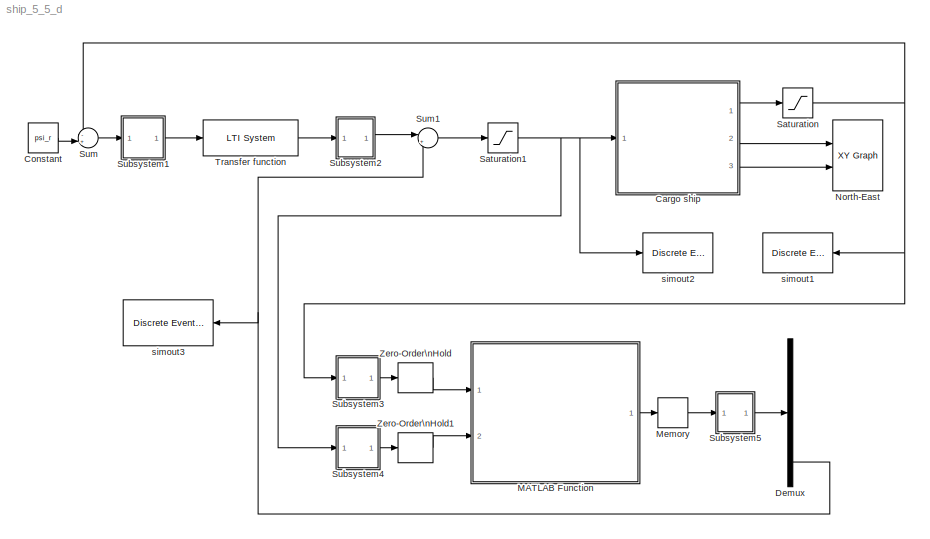
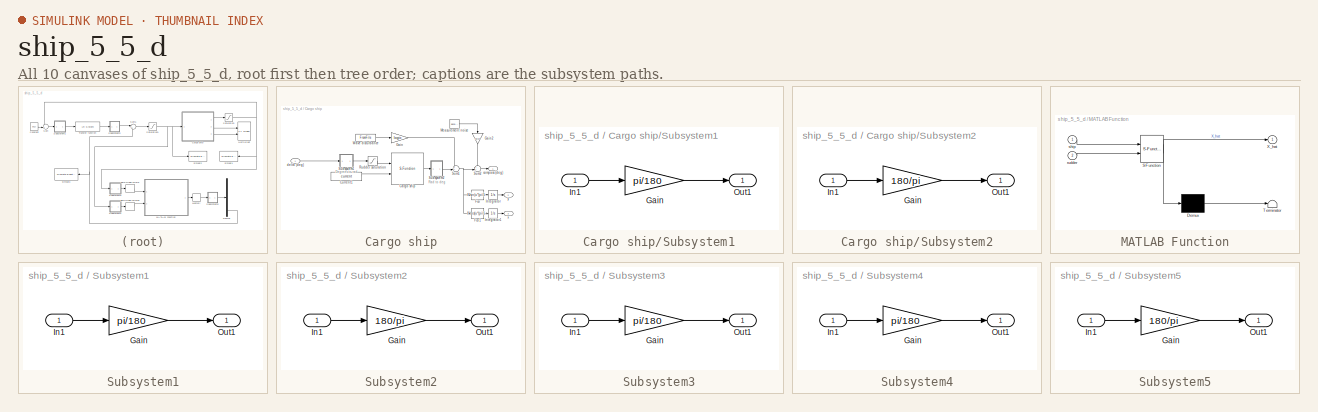
[diagram: thumbnail index - all 10 canvases of the model, root first then tree order]
MODEL ship_5_5_d
KIND model
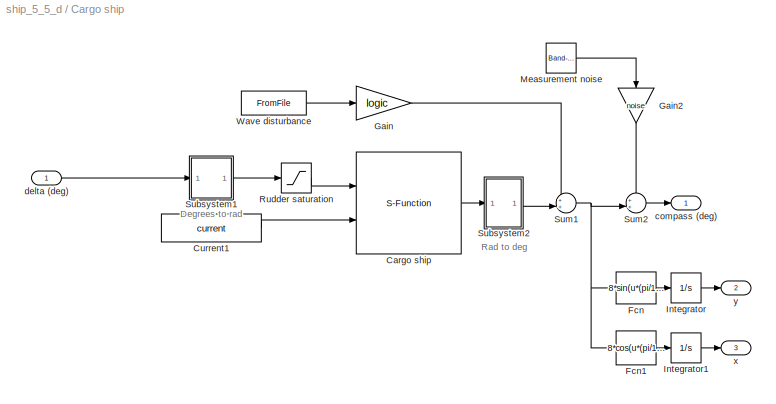
BLOCK [SubSystem] Cargo ship
  Ports = [1, 3]
  RequestExecContextInheritance = off
  SID = 1
BLOCK [S-Function] Cargo ship/Cargo ship
  FunctionName = Cargoship
  Ports = [2, 1]
  SID = 3
BLOCK [Constant] Cargo ship/Current1
  SID = 4
  Value = current
BLOCK [Fcn] Cargo ship/Fcn
  Expr = 8*sin(u*(pi/180))
  SID = 5
BLOCK [Fcn] Cargo ship/Fcn1
  Expr = 8*cos(u*(pi/180))
  SID = 6
BLOCK [Gain] Cargo ship/Gain
  Gain = logic
  SID = 7
BLOCK [Gain] Cargo ship/Gain2
  Gain = noise
  SID = 8
BLOCK [Integrator] Cargo ship/Integrator
  Ports = [1, 1]
  SID = 9
BLOCK [Integrator] Cargo ship/Integrator1
  Ports = [1, 1]
  SID = 10
BLOCK [Reference] Cargo ship/Measurement noise  REF=simulink/Sources/Band-Limited\nWhite Noise
  Cov = [0.001]
  Ports = [0, 1]
  SID = 11
  SourceBlock = simulink/Sources/Band-Limited\nWhite Noise
  SourceType = Band-Limited White Noise.
  Ts = .5
  VectorParams1D = on
  seed = [23341]
BLOCK [Saturate] Cargo ship/Rudder saturation
  InputPortMap = u0
  LowerLimit = -45*(pi/180)
  Ports = [1, 1]
  SID = 12
  UpperLimit = 45*(pi/180)
BLOCK [SubSystem] Cargo ship/Subsystem1
  Ports = [1, 1]
  RequestExecContextInheritance = off
  SID = 13
BLOCK [Gain] Cargo ship/Subsystem1/Gain
  Gain = pi/180
  SID = 15
BLOCK [Inport] Cargo ship/Subsystem1/In1
  IconDisplay = Port number
  SID = 14
BLOCK [Outport] Cargo ship/Subsystem1/Out1
  IconDisplay = Port number
  SID = 16
BLOCK [SubSystem] Cargo ship/Subsystem2
  Ports = [1, 1]
  RequestExecContextInheritance = off
  SID = 17
BLOCK [Gain] Cargo ship/Subsystem2/Gain
  Gain = 180/pi
  SID = 19
BLOCK [Inport] Cargo ship/Subsystem2/In1
  IconDisplay = Port number
  SID = 18
BLOCK [Outport] Cargo ship/Subsystem2/Out1
  IconDisplay = Port number
  SID = 20
BLOCK [Sum] Cargo ship/Sum1
  IconShape = round
  InputSameDT = off
  Inputs = ++|
  OutDataTypeStr = Inherit: Inherit via internal rule
  Ports = [2, 1]
  SID = 21
BLOCK [Sum] Cargo ship/Sum2
  IconShape = round
  InputSameDT = off
  Inputs = ++|
  OutDataTypeStr = Inherit: Inherit via internal rule
  Ports = [2, 1]
  SID = 22
BLOCK [FromFile] Cargo ship/Wave disturbance
  FileName = wave.mat
  SID = 23
  SampleTime = 0
BLOCK [Outport] Cargo ship/compass (deg)
  IconDisplay = Port number
  SID = 24
BLOCK [Inport] Cargo ship/delta (deg)
  IconDisplay = Port number
  SID = 2
BLOCK [Outport] Cargo ship/x
  IconDisplay = Port number
  Port = 3
  SID = 26
BLOCK [Outport] Cargo ship/y
  IconDisplay = Port number
  Port = 2
  SID = 25
BLOCK [Constant] Constant
  SID = 53
  Value = psi_r
BLOCK [Demux] Demux
  DisplayOption = bar
  Outputs = 5
  Ports = [1, 5]
  SID = 62
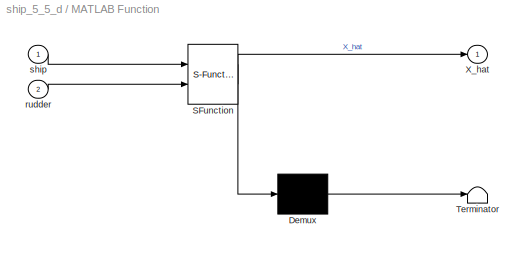
BLOCK [SubSystem] MATLAB Function
  ErrorFcn = Stateflow.Translate.translate
  PermitHierarchicalResolution = ExplicitOnly
  Ports = [2, 1]
  RequestExecContextInheritance = off
  SFBlockType = MATLAB Function
  SID = 57
  TreatAsAtomicUnit = on
BLOCK [Demux] MATLAB Function/ Demux 
  Outputs = 1
  Ports = [1, 1]
  SID = 57::17
BLOCK [S-Function] MATLAB Function/ SFunction 
  EnableBusSupport = on
  FunctionName = sf_sfun
  Parameters = kalmanFilter
  PortCounts = [2 2]
  Ports = [2, 2]
  SID = 57::16
  Tag = Stateflow S-Function ship_5_5_d 2
BLOCK [Terminator] MATLAB Function/ Terminator 
  SID = 57::18
BLOCK [Outport] MATLAB Function/X_hat
  IconDisplay = Port number
  SID = 57::5
BLOCK [Inport] MATLAB Function/rudder
  IconDisplay = Port number
  Port = 2
  SID = 57::19
BLOCK [Inport] MATLAB Function/ship
  IconDisplay = Port number
  SID = 57::1
BLOCK [Memory] Memory
  SID = 64
BLOCK [Reference] North-East  REF=simulink/Sinks/XY Graph
  Ports = [2]
  SID = 29
  SourceBlock = simulink/Sinks/XY Graph
  SourceType = XY scope.
  st = -1
  xmax = 5000
  xmin = -5000
  ymax = 5000
  ymin = -5000
BLOCK [Saturate] Saturation
  InputPortMap = u0
  LowerLimit = -35
  Ports = [1, 1]
  SID = 41
  UpperLimit = 35
BLOCK [Saturate] Saturation1
  InputPortMap = u0
  LowerLimit = -45
  Ports = [1, 1]
  SID = 51
  UpperLimit = 45
BLOCK [SubSystem] Subsystem1
  Ports = [1, 1]
  RequestExecContextInheritance = off
  SID = 42
BLOCK [Gain] Subsystem1/Gain
  Gain = pi/180
  SID = 44
BLOCK [Inport] Subsystem1/In1
  IconDisplay = Port number
  SID = 43
BLOCK [Outport] Subsystem1/Out1
  IconDisplay = Port number
  SID = 45
BLOCK [SubSystem] Subsystem2
  Ports = [1, 1]
  RequestExecContextInheritance = off
  SID = 46
BLOCK [Gain] Subsystem2/Gain
  Gain = 180/pi
  SID = 48
BLOCK [Inport] Subsystem2/In1
  IconDisplay = Port number
  SID = 47
BLOCK [Outport] Subsystem2/Out1
  IconDisplay = Port number
  SID = 49
BLOCK [SubSystem] Subsystem3
  Ports = [1, 1]
  RequestExecContextInheritance = off
  SID = 67
BLOCK [Gain] Subsystem3/Gain
  Gain = pi/180
  SID = 69
BLOCK [Inport] Subsystem3/In1
  IconDisplay = Port number
  SID = 68
BLOCK [Outport] Subsystem3/Out1
  IconDisplay = Port number
  SID = 70
BLOCK [SubSystem] Subsystem4
  Ports = [1, 1]
  RequestExecContextInheritance = off
  SID = 71
BLOCK [Gain] Subsystem4/Gain
  Gain = pi/180
  SID = 73
BLOCK [Inport] Subsystem4/In1
  IconDisplay = Port number
  SID = 72
BLOCK [Outport] Subsystem4/Out1
  IconDisplay = Port number
  SID = 74
BLOCK [SubSystem] Subsystem5
  Ports = [1, 1]
  RequestExecContextInheritance = off
  SID = 75
BLOCK [Gain] Subsystem5/Gain
  Gain = 180/pi
  SID = 77
BLOCK [Inport] Subsystem5/In1
  IconDisplay = Port number
  SID = 76
BLOCK [Outport] Subsystem5/Out1
  IconDisplay = Port number
  SID = 78
BLOCK [Sum] Sum
  IconShape = round
  InputSameDT = off
  Inputs = -+|
  OutDataTypeStr = Inherit: Inherit via internal rule
  Ports = [2, 1]
  SID = 50
  SaturateOnIntegerOverflow = off
BLOCK [Sum] Sum1
  IconShape = round
  InputSameDT = off
  Inputs = |++
  OutDataTypeStr = Inherit: Inherit via internal rule
  Ports = [2, 1]
  SID = 63
  SaturateOnIntegerOverflow = off
BLOCK [Reference] Transfer function  REF=cstblocks/LTI System
  IC = []
  Ports = [1, 1]
  SID = 38
  SourceBlock = cstblocks/LTI System
  SourceType = LTI Block
  sys = H_pd
BLOCK [ZeroOrderHold] Zero-Order\nHold
  SID = 54
  SampleTime = Ts
BLOCK [ZeroOrderHold] Zero-Order\nHold1
  SID = 61
  SampleTime = Ts
BLOCK [Reference] simout1  REF=simeventslib/SimEvents\nSinks/Discrete Event Signal\nto Workspace
  Decimation = 1
  MaxDataPoints = inf
  Ports = [1]
  SID = 32
  SaveFormat = Structure With Time
  SourceBlock = simeventslib/SimEvents\nSinks/Discrete Event Signal\nto Workspace
  SourceType = Discrete Event Signal to Workspace
  VariableName = ship
  isMonitorOnly = off
  isRecordIC = off
BLOCK [Reference] simout2  REF=simeventslib/SimEvents\nSinks/Discrete Event Signal\nto Workspace
  Decimation = 1
  MaxDataPoints = inf
  Ports = [1]
  SID = 65
  SaveFormat = Structure With Time
  SourceBlock = simeventslib/SimEvents\nSinks/Discrete Event Signal\nto Workspace
  SourceType = Discrete Event Signal to Workspace
  VariableName = rudder
  isMonitorOnly = off
  isRecordIC = off
BLOCK [Reference] simout3  REF=simeventslib/SimEvents\nSinks/Discrete Event Signal\nto Workspace
  Decimation = 1
  MaxDataPoints = inf
  Ports = [1]
  SID = 66
  SaveFormat = Structure With Time
  SourceBlock = simeventslib/SimEvents\nSinks/Discrete Event Signal\nto Workspace
  SourceType = Discrete Event Signal to Workspace
  VariableName = bias_estimate
  isMonitorOnly = off
  isRecordIC = off
ANNOTATION Cargo ship: Degrees to rad
ANNOTATION Cargo ship: Rad to deg
LINE Cargo ship/Cargo ship:1 -> Cargo ship/Subsystem2:1
LINE Cargo ship/Current1:1 -> Cargo ship/Cargo ship:2
LINE Cargo ship/Fcn1:1 -> Cargo ship/Integrator1:1
LINE Cargo ship/Fcn:1 -> Cargo ship/Integrator:1
LINE Cargo ship/Gain2:1 -> Cargo ship/Sum2:1
LINE Cargo ship/Gain:1 -> Cargo ship/Sum1:1
LINE Cargo ship/Integrator1:1 -> Cargo ship/x:1
LINE Cargo ship/Integrator:1 -> Cargo ship/y:1
LINE Cargo ship/Measurement noise:1 -> Cargo ship/Gain2:1
LINE Cargo ship/Rudder saturation:1 -> Cargo ship/Cargo ship:1
LINE Cargo ship/Subsystem1/Gain:1 -> Cargo ship/Subsystem1/Out1:1
LINE Cargo ship/Subsystem1/In1:1 -> Cargo ship/Subsystem1/Gain:1
LINE Cargo ship/Subsystem1:1 -> Cargo ship/Rudder saturation:1
LINE Cargo ship/Subsystem2/Gain:1 -> Cargo ship/Subsystem2/Out1:1
LINE Cargo ship/Subsystem2/In1:1 -> Cargo ship/Subsystem2/Gain:1
LINE Cargo ship/Subsystem2:1 -> Cargo ship/Sum1:2
NET Cargo ship/Sum1:1 -> Cargo ship/Fcn1:1, Cargo ship/Fcn:1, Cargo ship/Sum2:2
LINE Cargo ship/Sum2:1 -> Cargo ship/compass (deg):1
LINE Cargo ship/Wave disturbance:1 -> Cargo ship/Gain:1
LINE Cargo ship/delta (deg):1 -> Cargo ship/Subsystem1:1
LINE Cargo ship:1 -> Saturation:1
LINE Cargo ship:2 -> North-East:1
LINE Cargo ship:3 -> North-East:2
LINE Constant:1 -> Sum:2
NET Demux:5 -> Sum1:2, simout3:1
LINE MATLAB Function/ Demux :1 -> MATLAB Function/ Terminator :1
LINE MATLAB Function/ SFunction :1 -> MATLAB Function/ Demux :1
LINE MATLAB Function/ SFunction :2 -> MATLAB Function/X_hat:1
LINE MATLAB Function/rudder:1 -> MATLAB Function/ SFunction :2
LINE MATLAB Function/ship:1 -> MATLAB Function/ SFunction :1
LINE MATLAB Function:1 -> Memory:1
LINE Memory:1 -> Subsystem5:1
NET Saturation1:1 -> Cargo ship:1, Subsystem4:1, simout2:1
NET Saturation:1 -> Subsystem3:1, Sum:1, simout1:1
LINE Subsystem1/Gain:1 -> Subsystem1/Out1:1
LINE Subsystem1/In1:1 -> Subsystem1/Gain:1
LINE Subsystem1:1 -> Transfer function:1
LINE Subsystem2/Gain:1 -> Subsystem2/Out1:1
LINE Subsystem2/In1:1 -> Subsystem2/Gain:1
LINE Subsystem2:1 -> Sum1:1
LINE Subsystem3/Gain:1 -> Subsystem3/Out1:1
LINE Subsystem3/In1:1 -> Subsystem3/Gain:1
LINE Subsystem3:1 -> Zero-Order\nHold:1
LINE Subsystem4/Gain:1 -> Subsystem4/Out1:1
LINE Subsystem4/In1:1 -> Subsystem4/Gain:1
LINE Subsystem4:1 -> Zero-Order\nHold1:1
LINE Subsystem5/Gain:1 -> Subsystem5/Out1:1
LINE Subsystem5/In1:1 -> Subsystem5/Gain:1
LINE Subsystem5:1 -> Demux:1
LINE Sum1:1 -> Saturation1:1
LINE Sum:1 -> Subsystem1:1
LINE Transfer function:1 -> Subsystem2:1
LINE Zero-Order\nHold1:1 -> MATLAB Function:2
LINE Zero-Order\nHold:1 -> MATLAB Function:1
note: NET lines group one-source signal fan-out (src -> all destinations, sorted); 1:1 wires keep LINE
CHART MATLAB Function states=1 transitions=1
  STATE_LABEL 'eML_blk_kernel()'
